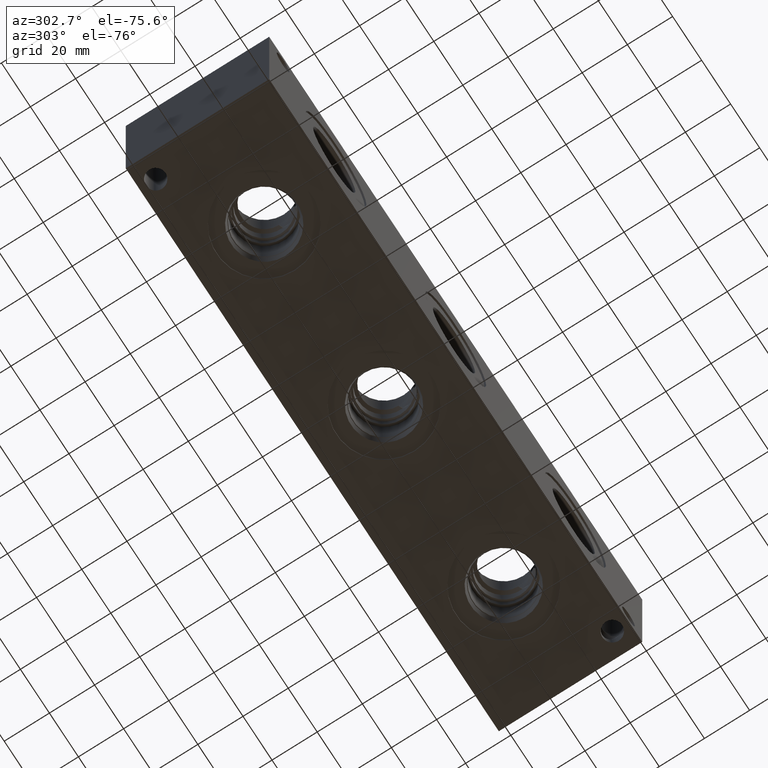
[diagram: clean part render]
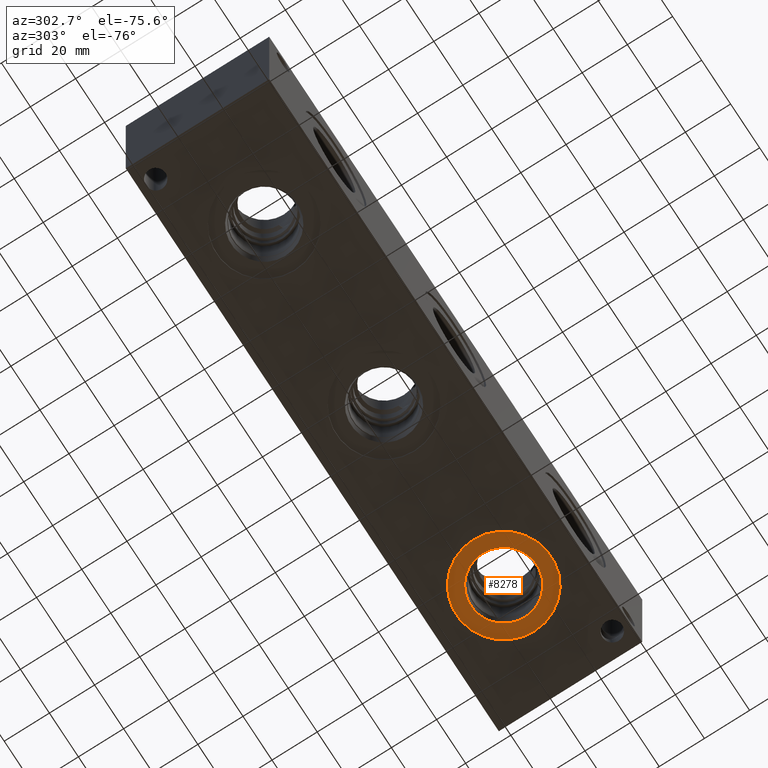
[diagram: same view with one face highlighted and labeled with its STEP entity id]
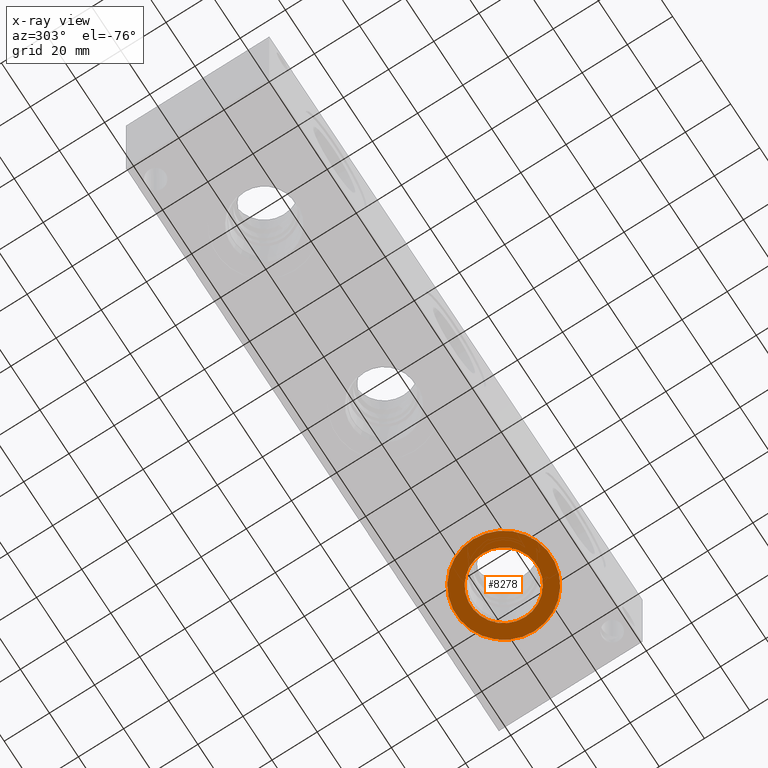
[diagram: x-ray of the same camera — body ghosted, the highlighted face saturated]
A machine part, auxiliary view. The second image highlights one B-rep face of the part: STEP entity #8278.
The next image is the same camera in x-ray: the body ghosted, the highlighted face saturated — about 0% of this face is hidden behind the body in this view.
In plain terms, the highlighted planar face has unit normal (0, 0, 1).
Its self-contained STEP definition (entity closure, byte-faithful):
#164=CIRCLE('',#8645,21.0185);
#165=CIRCLE('',#8646,21.0185);
#166=CIRCLE('',#8648,14.5923);
#167=CIRCLE('',#8649,14.5923);
#364=FACE_BOUND('',#1476,.T.);
#1010=FACE_OUTER_BOUND('',#1475,.T.);
#1475=EDGE_LOOP('',(#6782,#6783));
#1476=EDGE_LOOP('',(#6784,#6785));
#3689=VERTEX_POINT('',#13842);
#3690=VERTEX_POINT('',#13844);
#3691=VERTEX_POINT('',#13848);
#3692=VERTEX_POINT('',#13849);
#4748=EDGE_CURVE('',#3689,#3690,#164,.T.);
#4749=EDGE_CURVE('',#3690,#3689,#165,.T.);
#4750=EDGE_CURVE('',#3691,#3692,#166,.T.);
#4751=EDGE_CURVE('',#3692,#3691,#167,.T.);
#6782=ORIENTED_EDGE('',*,*,#4749,.F.);
#6783=ORIENTED_EDGE('',*,*,#4748,.F.);
#6784=ORIENTED_EDGE('',*,*,#4750,.T.);
#6785=ORIENTED_EDGE('',*,*,#4751,.T.);
#7638=PLANE('',#8647);
#8278=ADVANCED_FACE('',(#1010,#364),#7638,.F.);
#8645=AXIS2_PLACEMENT_3D('',#13845,#10101,#10102);
#8646=AXIS2_PLACEMENT_3D('',#13846,#10103,#10104);
#8647=AXIS2_PLACEMENT_3D('',#13847,#10105,#10106);
#8648=AXIS2_PLACEMENT_3D('',#13850,#10107,#10108);
#8649=AXIS2_PLACEMENT_3D('',#13851,#10109,#10110);
#10101=DIRECTION('center_axis',(0.,0.,1.));
#10102=DIRECTION('ref_axis',(1.,0.,0.));
#10103=DIRECTION('center_axis',(0.,0.,1.));
#10104=DIRECTION('ref_axis',(1.,0.,0.));
#10105=DIRECTION('center_axis',(0.,0.,1.));
#10106=DIRECTION('ref_axis',(1.,0.,0.));
#10107=DIRECTION('center_axis',(0.,0.,1.));
#10108=DIRECTION('ref_axis',(1.,0.,0.));
#10109=DIRECTION('center_axis',(0.,0.,1.));
#10110=DIRECTION('ref_axis',(1.,0.,0.));
#13842=CARTESIAN_POINT('',(190.1063,31.75,0.7874));
#13844=CARTESIAN_POINT('',(232.1433,31.75,0.7874));
#13845=CARTESIAN_POINT('Origin',(211.1248,31.75,0.7874));
#13846=CARTESIAN_POINT('Origin',(211.1248,31.75,0.7874));
#13847=CARTESIAN_POINT('Origin',(225.7171,31.75,0.7874));
#13848=CARTESIAN_POINT('',(225.7171,31.75,0.7874));
#13849=CARTESIAN_POINT('',(196.5325,31.75,0.787399999999995));
#13850=CARTESIAN_POINT('Origin',(211.1248,31.75,0.7874));
#13851=CARTESIAN_POINT('Origin',(211.1248,31.75,0.7874));